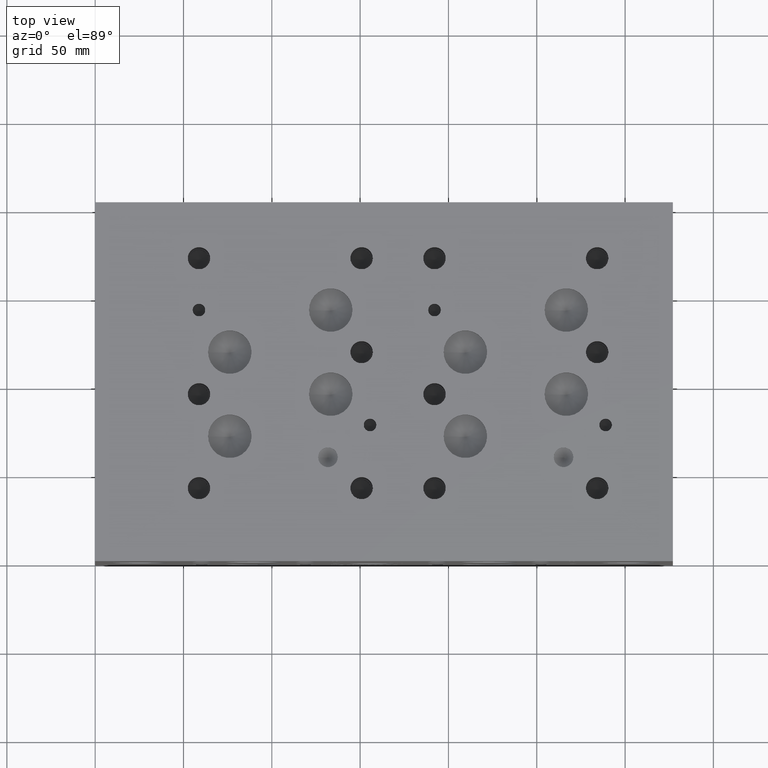
[diagram: clean part render]
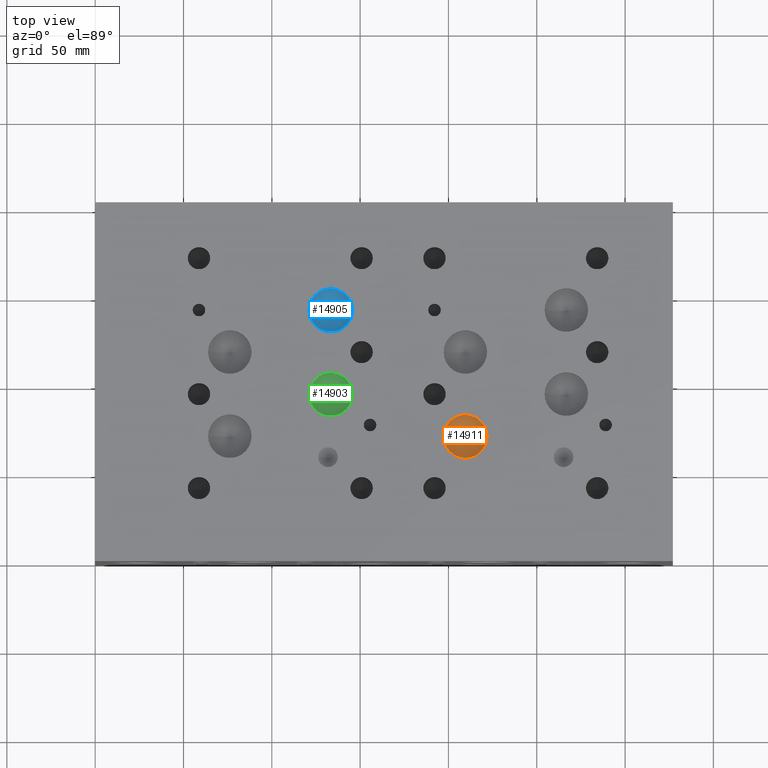
[diagram: same view with three faces highlighted in distinct colors, each labeled with its STEP entity id]
A machine part, top view with three faces highlighted in distinct colors.
Their STEP definitions:

[orange] entity #14911 — the highlighted conical surface has half-angle 60 deg.
#218=CONICAL_SURFACE('',#15970,6.15315,1.0471975511966);
#648=CIRCLE('',#15971,12.3063);
#649=CIRCLE('',#15972,12.3063);
#2034=FACE_OUTER_BOUND('',#2954,.T.);
#2954=EDGE_LOOP('',(#13304,#13305,#13306,#13307));
#4279=LINE('',#25692,#5561);
#5561=VECTOR('',#19340,6.15315);
#7282=VERTEX_POINT('',#25688);
#7283=VERTEX_POINT('',#25689);
#7284=VERTEX_POINT('',#25691);
#9326=EDGE_CURVE('',#7282,#7283,#648,.T.);
#9327=EDGE_CURVE('',#7283,#7284,#4279,.T.);
#9328=EDGE_CURVE('',#7283,#7282,#649,.T.);
#13304=ORIENTED_EDGE('',*,*,#9326,.T.);
#13305=ORIENTED_EDGE('',*,*,#9327,.T.);
#13306=ORIENTED_EDGE('',*,*,#9327,.F.);
#13307=ORIENTED_EDGE('',*,*,#9328,.T.);
#14911=ADVANCED_FACE('',(#2034),#218,.F.);
#15970=AXIS2_PLACEMENT_3D('',#25687,#19336,#19337);
#15971=AXIS2_PLACEMENT_3D('',#25690,#19338,#19339);
#15972=AXIS2_PLACEMENT_3D('',#25693,#19341,#19342);
#19336=DIRECTION('center_axis',(0.,0.,1.));
#19337=DIRECTION('ref_axis',(1.,0.,0.));
#19338=DIRECTION('center_axis',(0.,0.,1.));
#19339=DIRECTION('ref_axis',(1.,0.,0.));
#19340=DIRECTION('',(0.866025403784439,1.06057523872491E-16,-0.5));
#19341=DIRECTION('center_axis',(0.,0.,1.));
#19342=DIRECTION('ref_axis',(1.,0.,0.));
#25687=CARTESIAN_POINT('Origin',(209.55,70.6374,141.742427191136));
#25688=CARTESIAN_POINT('',(221.8563,70.6374,145.29495));
#25689=CARTESIAN_POINT('',(197.2437,70.6374,145.29495));
#25690=CARTESIAN_POINT('Origin',(209.55,70.6374,145.29495));
#25691=CARTESIAN_POINT('',(209.55,70.6374,138.189904382272));
#25692=CARTESIAN_POINT('',(203.39685,70.6374,141.742427191136));
#25693=CARTESIAN_POINT('Origin',(209.55,70.6374,145.29495));

[blue] entity #14905 — the highlighted conical surface has half-angle 60 deg.
#215=CONICAL_SURFACE('',#15952,6.15315,1.0471975511966);
#636=CIRCLE('',#15953,12.3063);
#637=CIRCLE('',#15954,12.3063);
#2028=FACE_OUTER_BOUND('',#2948,.T.);
#2948=EDGE_LOOP('',(#13274,#13275,#13276,#13277));
#4273=LINE('',#25653,#5555);
#5555=VECTOR('',#19298,6.15315);
#7267=VERTEX_POINT('',#25649);
#7268=VERTEX_POINT('',#25650);
#7269=VERTEX_POINT('',#25652);
#9308=EDGE_CURVE('',#7267,#7268,#636,.T.);
#9309=EDGE_CURVE('',#7268,#7269,#4273,.T.);
#9310=EDGE_CURVE('',#7268,#7267,#637,.T.);
#13274=ORIENTED_EDGE('',*,*,#9308,.T.);
#13275=ORIENTED_EDGE('',*,*,#9309,.T.);
#13276=ORIENTED_EDGE('',*,*,#9309,.F.);
#13277=ORIENTED_EDGE('',*,*,#9310,.T.);
#14905=ADVANCED_FACE('',(#2028),#215,.F.);
#15952=AXIS2_PLACEMENT_3D('',#25648,#19294,#19295);
#15953=AXIS2_PLACEMENT_3D('',#25651,#19296,#19297);
#15954=AXIS2_PLACEMENT_3D('',#25654,#19299,#19300);
#19294=DIRECTION('center_axis',(0.,0.,1.));
#19295=DIRECTION('ref_axis',(1.,0.,0.));
#19296=DIRECTION('center_axis',(0.,0.,1.));
#19297=DIRECTION('ref_axis',(1.,0.,0.));
#19298=DIRECTION('',(0.866025403784439,1.06057523872491E-16,-0.5));
#19299=DIRECTION('center_axis',(0.,0.,1.));
#19300=DIRECTION('ref_axis',(1.,0.,0.));
#25648=CARTESIAN_POINT('Origin',(133.35,142.0876,141.742427191136));
#25649=CARTESIAN_POINT('',(145.6563,142.0876,145.29495));
#25650=CARTESIAN_POINT('',(121.0437,142.0876,145.29495));
#25651=CARTESIAN_POINT('Origin',(133.35,142.0876,145.29495));
#25652=CARTESIAN_POINT('',(133.35,142.0876,138.189904382272));
#25653=CARTESIAN_POINT('',(127.19685,142.0876,141.742427191136));
#25654=CARTESIAN_POINT('Origin',(133.35,142.0876,145.29495));

[green] entity #14903 — the highlighted conical surface has half-angle 60 deg.
#214=CONICAL_SURFACE('',#15946,6.15315,1.0471975511966);
#632=CIRCLE('',#15947,12.3063);
#633=CIRCLE('',#15948,12.3063);
#2026=FACE_OUTER_BOUND('',#2946,.T.);
#2946=EDGE_LOOP('',(#13264,#13265,#13266,#13267));
#4271=LINE('',#25640,#5553);
#5553=VECTOR('',#19284,6.15315);
#7262=VERTEX_POINT('',#25636);
#7263=VERTEX_POINT('',#25637);
#7264=VERTEX_POINT('',#25639);
#9302=EDGE_CURVE('',#7262,#7263,#632,.T.);
#9303=EDGE_CURVE('',#7263,#7264,#4271,.T.);
#9304=EDGE_CURVE('',#7263,#7262,#633,.T.);
#13264=ORIENTED_EDGE('',*,*,#9302,.T.);
#13265=ORIENTED_EDGE('',*,*,#9303,.T.);
#13266=ORIENTED_EDGE('',*,*,#9303,.F.);
#13267=ORIENTED_EDGE('',*,*,#9304,.T.);
#14903=ADVANCED_FACE('',(#2026),#214,.F.);
#15946=AXIS2_PLACEMENT_3D('',#25635,#19280,#19281);
#15947=AXIS2_PLACEMENT_3D('',#25638,#19282,#19283);
#15948=AXIS2_PLACEMENT_3D('',#25641,#19285,#19286);
#19280=DIRECTION('center_axis',(0.,0.,1.));
#19281=DIRECTION('ref_axis',(1.,0.,0.));
#19282=DIRECTION('center_axis',(0.,0.,1.));
#19283=DIRECTION('ref_axis',(1.,0.,0.));
#19284=DIRECTION('',(0.866025403784439,1.06057523872491E-16,-0.5));
#19285=DIRECTION('center_axis',(0.,0.,1.));
#19286=DIRECTION('ref_axis',(1.,0.,0.));
#25635=CARTESIAN_POINT('Origin',(133.35,94.4626,141.742427191136));
#25636=CARTESIAN_POINT('',(145.6563,94.4626,145.29495));
#25637=CARTESIAN_POINT('',(121.0437,94.4626,145.29495));
#25638=CARTESIAN_POINT('Origin',(133.35,94.4626,145.29495));
#25639=CARTESIAN_POINT('',(133.35,94.4626,138.189904382272));
#25640=CARTESIAN_POINT('',(127.19685,94.4626,141.742427191136));
#25641=CARTESIAN_POINT('Origin',(133.35,94.4626,145.29495));